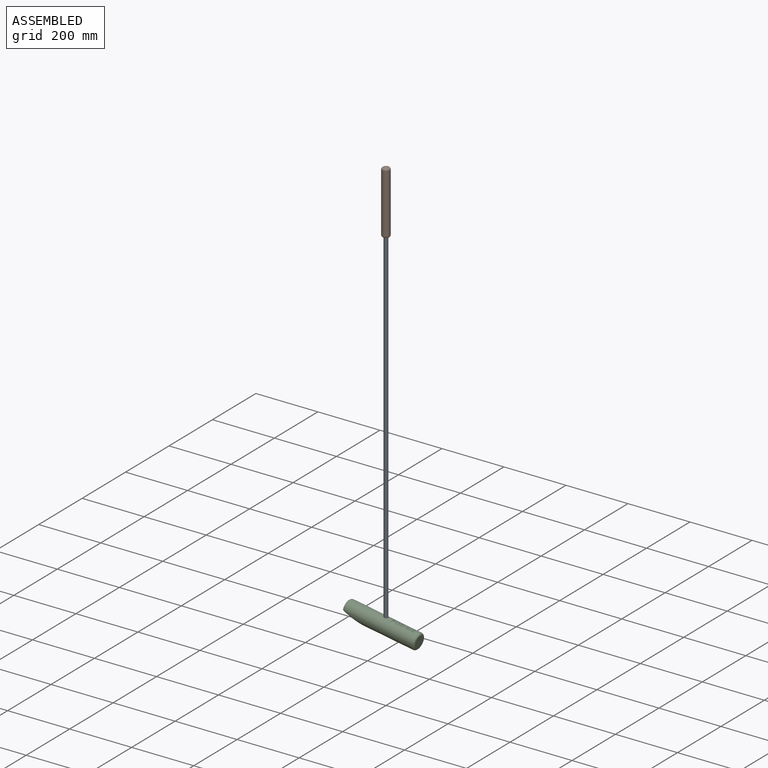
[diagram: assembled view]
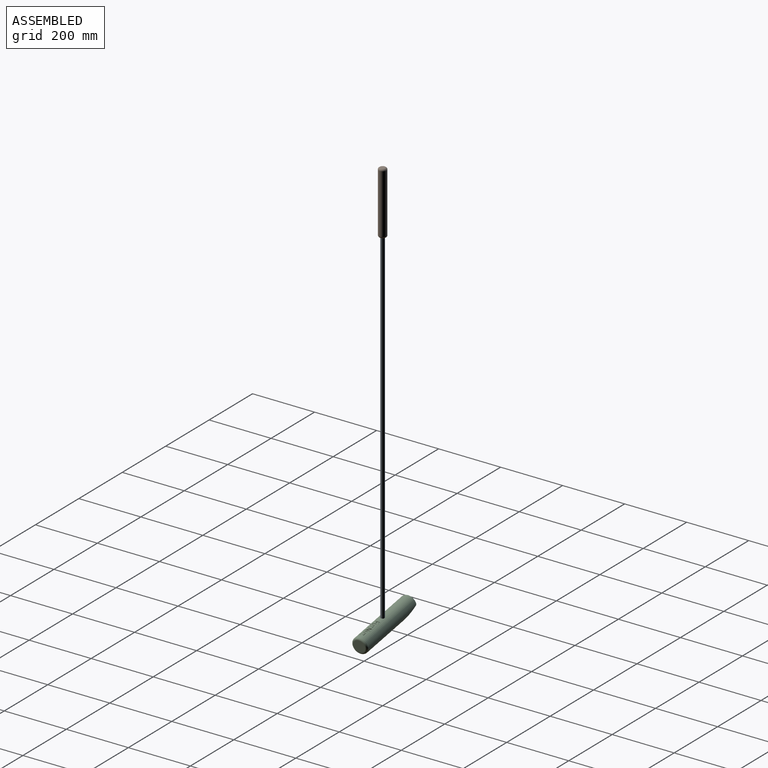
[diagram: assembled view, second angle]
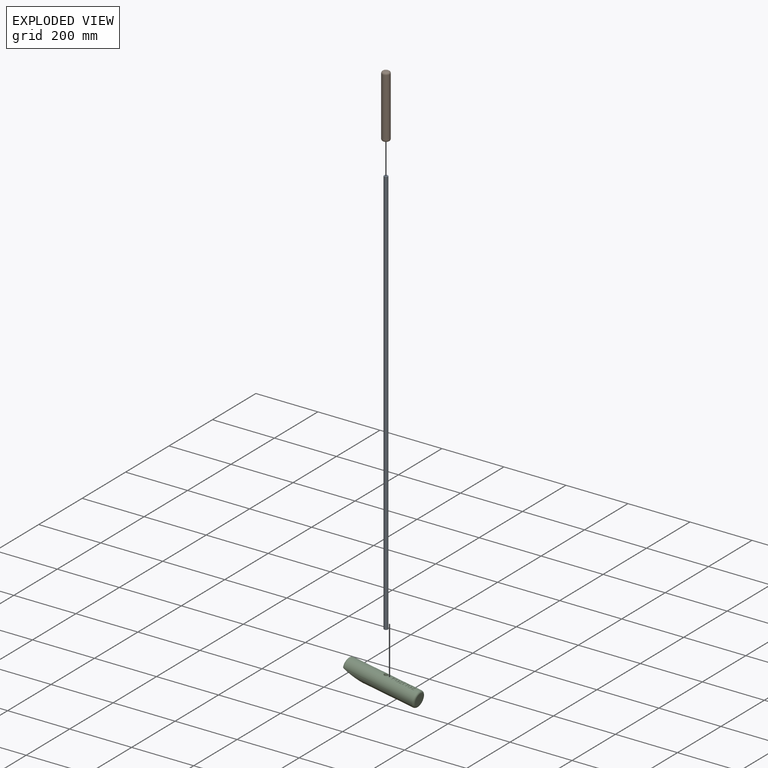
[diagram: exploded view]
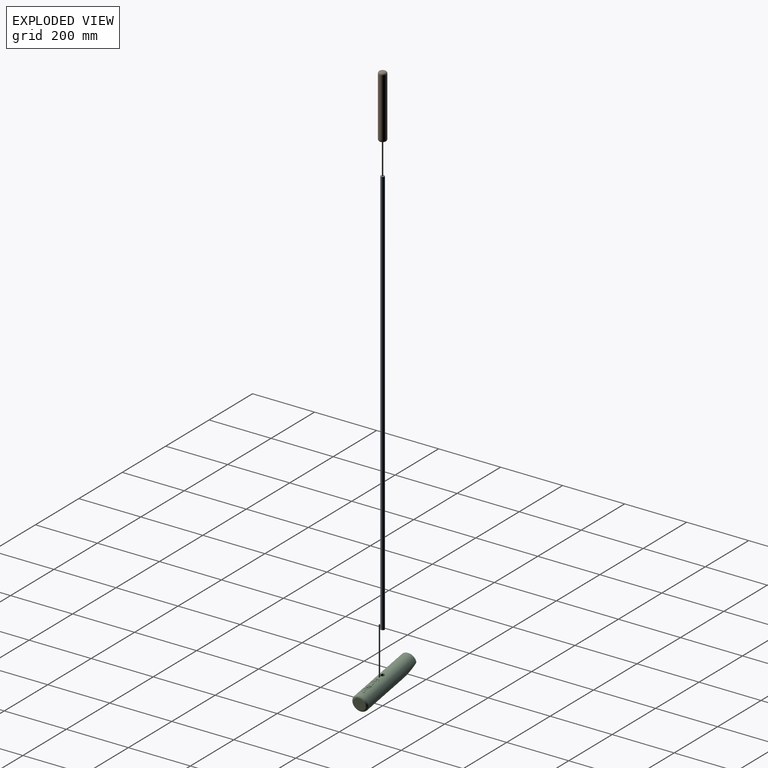
[diagram: exploded view, second angle]
ASSEMBLY  parts=3 mates=4
PART A: 3 faces, bbox 12.7x12.7x1320.8 mm
  f0: cylinder r=6.35mm len=1320.8mm, axis (0,0,-1), area 52697.6mm2, adj f1,f2
  f1: plane 12.7x12.7mm, normal (0,0,1), area 126.7mm2, adj f0
  f2: plane 12.7x12.7mm, normal (0,0,-1), area 126.7mm2, adj f0
PART B: 6 faces, bbox 27.5x27.5x203.2 mm
  f0: cylinder r=6.35mm len=177.8mm, axis (0,0,-1), area 7093.9mm2, adj f3,f5
  f1: cylinder r=12.7mm len=190.5mm, axis (0,0,-1), area 15201.2mm2, adj f2,f3
  f2: torus R=6.35mm, axis (0,0,1), area 651.3mm2, adj f1,f4
  f3: torus R=6.35mm, axis (0,0,1), area 651.3mm2, adj f0,f1
  f4: plane 12.7x12.7mm, normal (0,0,-1), area 126.7mm2, adj f2
  f5: plane 12.7x12.7mm, normal (0,0,1), area 126.7mm2, adj f0
PART C: 97 faces, bbox 55.1x55.2x240.6 mm
  f0: cylinder r=25.4mm len=222.25mm, axis (0,0,-1), area 31194.7mm2, adj f2,f4,f6,f10,f12,f13,f14,f15
  f1: plane 37.52x15.75mm, normal (0,0,-1), area 444.9mm2, adj f2,f9
  f2: torus R=19.05mm, axis (0,0,1), area 651.1mm2, adj f0,f1,f7,f8
  f3: plane 38.1x38.1mm, normal (0,0,1), area 1140.1mm2, adj f4
  f4: torus R=19.05mm, axis (0,0,1), area 1447.3mm2, adj f0,f3
  f5: plane 71.02x40.64mm, normal (0,0.95,-0.32), area 2477.7mm2, adj f6,f7,f8,f9
  f6: bspline ~81.7x52.32mm, area 885.8mm2, adj f0,f5,f7,f8
  f7: bspline ~8.75x7.83mm, area 50.6mm2, adj f2,f5,f6,f9
  f8: bspline ~8.75x7.83mm, area 50.6mm2, adj f2,f5,f6,f9
  f9: cylinder r=5.08mm len=37.52mm, axis (1,0,0), area 238.2mm2, adj f1,f5,f7,f8
  f10: cylinder r=6.35mm len=37.69mm, axis (0,-0.98,-0.17), area 1376.6mm2, adj f0,f11
  f11: plane 12.7x12.51mm, normal (0,-0.98,-0.17), area 126.7mm2, adj f10
  f12: plane 8.56x0.32mm, normal (-1,0,0), area 2.7mm2, adj f0,f13,f21,f96
  f13: plane 1.39x0.73mm, normal (0,0,-1), area 0.7mm2, adj f0,f12,f14,f96
  f14: plane 6.51x0.73mm, normal (1,0,0), area 4.8mm2, adj f0,f13,f15,f96
  f15: plane 9.07x6.4mm, normal (-0.58,0,-0.82), area 15.1mm2, adj f0,f14,f16,f96
  f16: plane 1.47x1.39mm, normal (0,0,-1), area 1.9mm2, adj f0,f15,f17,f96
  f17: plane 7.99x1.29mm, normal (1,0,0), area 10.3mm2, adj f0,f16,f18,f96
  f18: plane 1.47x1.39mm, normal (0,0,1), area 1.9mm2, adj f0,f17,f19,f96
  f19: plane 6.04x1.47mm, normal (-1,0,0), area 8.9mm2, adj f0,f18,f20,f96
  f20: plane 9.24x6.49mm, normal (0.57,0,0.82), area 15.2mm2, adj f0,f19,f21,f96
  f21: plane 1.22x0.68mm, normal (0,0,1), area 0.6mm2, adj f0,f12,f20,f96
  f22: plane 7.65x1.59mm, normal (0,0,-1), area 11.4mm2, adj f0,f23,f38,f95
  f23: plane 1.81x1.29mm, normal (1,0,0), area 2.3mm2, adj f0,f22,f24,f95
  f24: plane 7.72x1.59mm, normal (0,0,1), area 11.5mm2, adj f0,f23,f25,f95
  f25: extruded ~3.27x1.29mm, area 3.4mm2, adj f0,f24,f26,f95
  f26: extruded ~3.22x1.02mm, area 1.2mm2, adj f0,f25,f27,f95
  f27: extruded ~2.22x0.46mm, area 0.7mm2, adj f0,f26,f28,f95
  f28: extruded ~1.52x1.33mm, area 1.2mm2, adj f0,f27,f29,f95
  f29: plane 0.78x0.1mm, normal (-1,0,0), area 0.1mm2, adj f0,f28,f30,f95
  f30: plane 1.58x0.78mm, normal (-0.16,0,0.99), area 0.9mm2, adj f0,f29,f31,f95
  f31: plane 1.47x0.32mm, normal (-1,0,0), area 0.5mm2, adj f0,f30,f32,f95
  f32: plane 11.79x1.59mm, normal (0,0,-1), area 15mm2, adj f0,f31,f33,f95
  f33: plane 1.79x1.29mm, normal (1,0,0), area 2.3mm2, adj f0,f32,f34,f95
  f34: plane 6.2x1.59mm, normal (0,0,1), area 9.4mm2, adj f0,f33,f35,f95
  f35: extruded ~3.3x1.48mm, area 4.3mm2, adj f0,f34,f36,f95
  f36: extruded ~2.71x1.01mm, area 2.4mm2, adj f0,f35,f37,f95
  f37: extruded ~2.05x0.88mm, area 1.8mm2, adj f0,f36,f38,f95
  f38: extruded ~2.15x1.3mm, area 2.6mm2, adj f0,f22,f37,f95
  f39: plane 2.09x0.32mm, normal (-1,0,0), area 0.7mm2, adj f0,f40,f53,f94
  f40: plane 15.73x1.59mm, normal (0,0,-1), area 18.5mm2, adj f0,f39,f41,f94
  f41: plane 1.71x0.36mm, normal (1,0,0), area 0.6mm2, adj f0,f40,f42,f94
  f42: plane 9.03x1.59mm, normal (0,0,1), area 11.2mm2, adj f0,f41,f43,f94
  f43: extruded ~2.26x1.56mm, area 3.2mm2, adj f0,f42,f44,f94
  f44: extruded ~1.87x1.35mm, area 2.3mm2, adj f0,f43,f45,f94
  f45: plane 1.02x0.09mm, normal (1,0,0), area 0.1mm2, adj f0,f44,f46,f94
  f46: plane 13.23x8.66mm, normal (0.55,0,-0.84), area 19.9mm2, adj f0,f45,f47,f94
  f47: plane 2.07x0.36mm, normal (1,0,0), area 0.7mm2, adj f0,f46,f48,f94
  f48: plane 15.73x1.59mm, normal (0,0,1), area 18.5mm2, adj f0,f47,f49,f94
  f49: plane 1.69x0.32mm, normal (-1,0,0), area 0.5mm2, adj f0,f48,f50,f94
  f50: plane 8.94x1.59mm, normal (0,0,-1), area 10.9mm2, adj f0,f49,f51,f94
  f51: extruded ~4.26x1.57mm, area 5.5mm2, adj f0,f50,f52,f94
  f52: plane 1.04x0.09mm, normal (-1,0,0), area 0.1mm2, adj f0,f51,f53,f94
  f53: plane 13.28x8.68mm, normal (-0.55,0,0.84), area 19.9mm2, adj f0,f39,f52,f94
  f54: plane 8.56x0.32mm, normal (-1,0,0), area 2.7mm2, adj f0,f55,f63,f93
  f55: plane 1.39x0.73mm, normal (0,0,-1), area 0.7mm2, adj f0,f54,f56,f93
  f56: plane 6.51x0.73mm, normal (1,0,0), area 4.8mm2, adj f0,f55,f57,f93
  f57: plane 9.07x6.4mm, normal (-0.58,0,-0.82), area 15.1mm2, adj f0,f56,f58,f93
  f58: plane 1.47x1.39mm, normal (0,0,-1), area 1.9mm2, adj f0,f57,f59,f93
  f59: plane 7.99x1.29mm, normal (1,0,0), area 10.3mm2, adj f0,f58,f60,f93
  f60: plane 1.47x1.39mm, normal (0,0,1), area 1.9mm2, adj f0,f59,f61,f93
  f61: plane 6.04x1.47mm, normal (-1,0,0), area 8.9mm2, adj f0,f60,f62,f93
  f62: plane 9.24x6.49mm, normal (0.57,0,0.82), area 15.2mm2, adj f0,f61,f63,f93
  f63: plane 1.22x0.68mm, normal (0,0,1), area 0.6mm2, adj f0,f54,f62,f93
  f64: plane 7.65x1.59mm, normal (0,0,-1), area 11.4mm2, adj f0,f65,f80,f92
  f65: plane 1.81x1.29mm, normal (1,0,0), area 2.3mm2, adj f0,f64,f66,f92
  f66: plane 7.72x1.59mm, normal (0,0,1), area 11.5mm2, adj f0,f65,f67,f92
  f67: extruded ~3.27x1.29mm, area 3.4mm2, adj f0,f66,f68,f92
  f68: extruded ~3.22x1.02mm, area 1.2mm2, adj f0,f67,f69,f92
  f69: extruded ~2.22x0.46mm, area 0.7mm2, adj f0,f68,f70,f92
  f70: extruded ~1.52x1.33mm, area 1.2mm2, adj f0,f69,f71,f92
  f71: plane 0.78x0.1mm, normal (-1,0,0), area 0.1mm2, adj f0,f70,f72,f92
  f72: plane 1.58x0.78mm, normal (-0.16,0,0.99), area 0.9mm2, adj f0,f71,f73,f92
  f73: plane 1.47x0.32mm, normal (-1,0,0), area 0.5mm2, adj f0,f72,f74,f92
  f74: plane 11.79x1.59mm, normal (0,0,-1), area 15mm2, adj f0,f73,f75,f92
  f75: plane 1.79x1.29mm, normal (1,0,0), area 2.3mm2, adj f0,f74,f76,f92
  f76: plane 6.2x1.59mm, normal (0,0,1), area 9.4mm2, adj f0,f75,f77,f92
  f77: extruded ~3.3x1.48mm, area 4.3mm2, adj f0,f76,f78,f92
  f78: extruded ~2.71x1.01mm, area 2.4mm2, adj f0,f77,f79,f92
  f79: extruded ~2.05x0.88mm, area 1.8mm2, adj f0,f78,f80,f92
  f80: extruded ~2.15x1.3mm, area 2.6mm2, adj f0,f64,f79,f92
  f81: plane 1.83x0.32mm, normal (-1,0,0), area 0.6mm2, adj f0,f82,f90,f91
  f82: plane 6.72x1.56mm, normal (0,0,-1), area 7.4mm2, adj f0,f81,f83,f91
  f83: plane 6.52x1.56mm, normal (-1,0,0), area 10.2mm2, adj f0,f82,f84,f91
  f84: plane 1.63x1.59mm, normal (0,0,-1), area 2.6mm2, adj f0,f83,f85,f91
  f85: plane 6.52x1.58mm, normal (1,0,0), area 10.3mm2, adj f0,f84,f86,f91
  f86: plane 5.76x1.58mm, normal (0,0,-1), area 7.6mm2, adj f0,f85,f87,f91
  f87: plane 6.94x0.83mm, normal (-1,0,0), area 5.7mm2, adj f0,f86,f88,f91
  f88: plane 1.63x0.83mm, normal (0,0,-1), area 1mm2, adj f0,f87,f89,f91
  f89: plane 8.77x0.36mm, normal (1,0,0), area 3.2mm2, adj f0,f88,f90,f91
  f90: plane 15.73x1.59mm, normal (0,0,1), area 18.5mm2, adj f0,f81,f89,f91
  f91: plane 15.73x8.77mm, normal (0,-1,0), area 50.6mm2, adj f81,f82,f83,f84,f85,f86,f87,f88
  f92: plane 12.01x9.86mm, normal (0,-1,0), area 50.6mm2, adj f64,f65,f66,f67,f68,f69,f70,f71
  f93: plane 11.79x8.56mm, normal (0,-1,0), area 40.5mm2, adj f54,f55,f56,f57,f58,f59,f60,f61
  f94: plane 15.73x12.29mm, normal (0,-1,0), area 81.7mm2, adj f39,f40,f41,f42,f43,f44,f45,f46
  f95: plane 12.01x9.86mm, normal (0,-1,0), area 50.6mm2, adj f22,f23,f24,f25,f26,f27,f28,f29
  f96: plane 11.79x8.56mm, normal (0,-1,0), area 40.5mm2, adj f12,f13,f14,f15,f16,f17,f18,f19
PLACE A rot(axis=(-0.71,0.71,0),180deg) t=(0,0,-25.4)mm
PLACE B rot(axis=(-0.71,0.71,0),180deg) t=(0,0,0)mm
PLACE C rot(axis=(-0.61,0.61,-0.51),125.9deg) t=(-123.96,0,-1315.22)mm
MATE fastened B.f0 <-> A.f0  axis (0,0,-1) through (0,0,-25.4)mm
MATE slider C.f10 <-> A.f0  axis (0,0,1) through (0,0,-1309.95)mm
MATE slider B.f0 <-> A.f0  axis (0,0,1) through (0,0,-203.2)mm
MATE fastened C.f10 <-> A.f0  axis (0,0,1) through (0,0,-1346.2)mm
